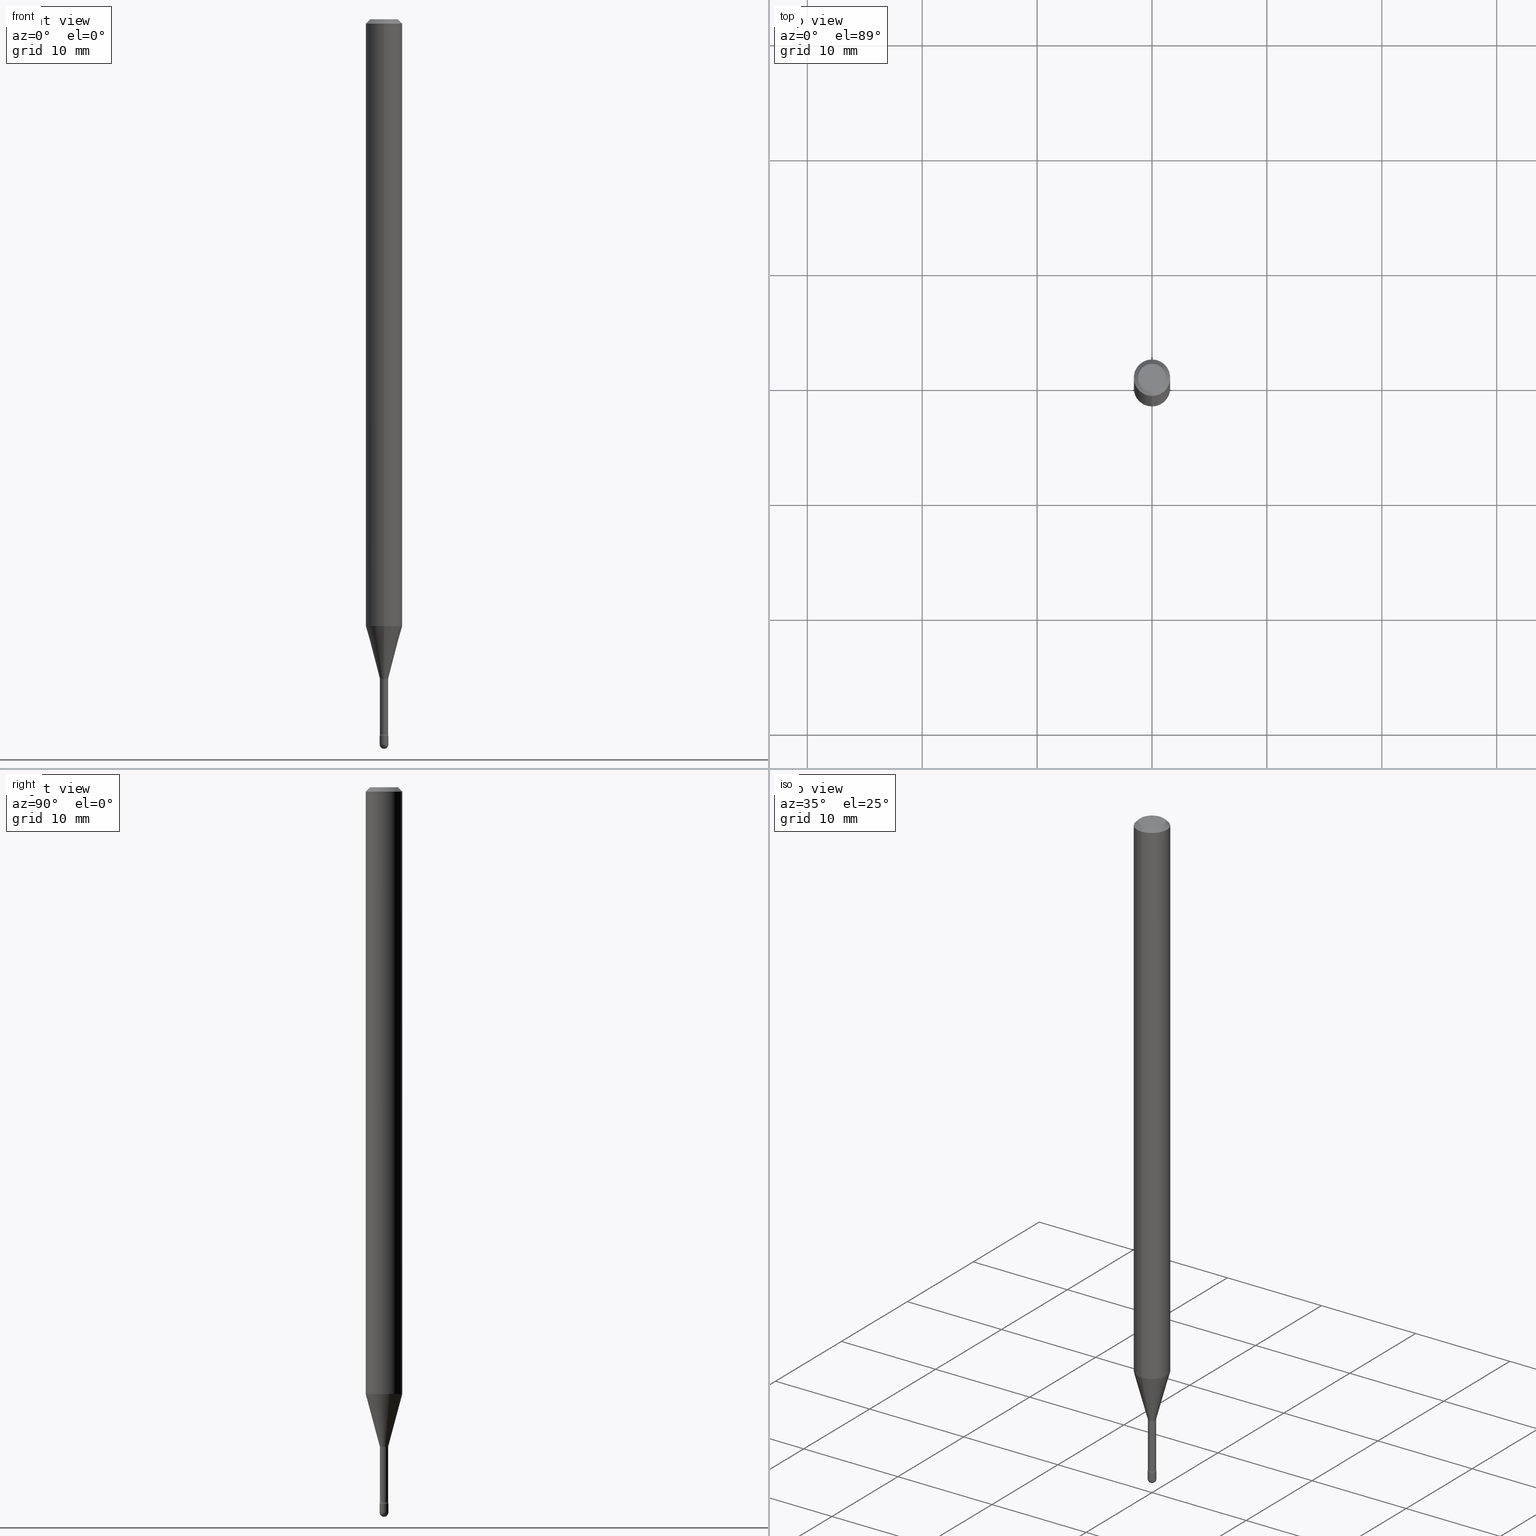
[diagram: canonical four-view strip — front | top / right | iso, engineering-drawing reading convention]
A machine part, canonical four-view strip (front | top / right | iso — engineering-drawing reading convention). The complete STEP part file that produces these views, byte-faithful:
ISO-10303-21;
HEADER;
FILE_DESCRIPTION (( 'STEP AP203' ),
    '1' );
FILE_NAME ('03863.STEP',
    '2024-04-09T20:49:26',
    ( '' ),
    ( '' ),
    'SwSTEP 2.0',
    'SolidWorks 2023',
    '' );
FILE_SCHEMA (( 'CONFIG_CONTROL_DESIGN' ));
ENDSEC;

DATA;
#1 = ORIENTED_EDGE ( 'NONE', *, *, #45, .T. ) ;
#2 = DIRECTION ( 'NONE',  ( 1.000000000000000000, -6.982962677686265922E-15, 4.883557194083112340E-29 ) ) ;
#3 = APPROVAL_DATE_TIME ( #109, #97 ) ;
#4 = EDGE_CURVE ( 'NONE', #251, #80, #111, .T. ) ;
#5 = DIRECTION ( 'NONE',  ( -2.445419966882117621E-29, 3.491551279504829123E-15, 1.000000000000000000 ) ) ;
#6 = ORIENTED_EDGE ( 'NONE', *, *, #414, .T. ) ;
#7 = CLOSED_SHELL ( 'NONE', ( #536, #551, #235, #434, #466 ) ) ;
#8 = CIRCLE ( 'NONE', #252, 0.04749999999999999362 ) ;
#9 = CARTESIAN_POINT ( 'NONE',  ( 5.991110947347058823E-29, -8.553718623887255619E-15, -2.449882383367230965 ) ) ;
#10 = DIRECTION ( 'NONE',  ( -2.445419966882117621E-29, 3.491551279504829123E-15, 1.000000000000000000 ) ) ;
#11 = ADVANCED_FACE ( 'NONE', ( #401 ), #406, .T. ) ;
#12 = APPROVAL_STATUS ( 'not_yet_approved' ) ;
#13 = MANIFOLD_SOLID_BREP ( 'Body-Move/Copy2[2]', #178 ) ;
#14 = EDGE_LOOP ( 'NONE', ( #561, #179, #269, #238 ) ) ;
#15 = DIRECTION ( 'NONE',  ( -2.445419966882117621E-29, 3.491551279504828729E-15, 1.000000000000000000 ) ) ;
#16 = CALENDAR_DATE ( 2024, 9, 4 ) ;
#17 = FACE_OUTER_BOUND ( 'NONE', #489, .T. ) ;
#18 = ORIENTED_EDGE ( 'NONE', *, *, #301, .T. ) ;
#19 = MANIFOLD_SOLID_BREP ( 'Body-Move/Copy2[1]', #7 ) ;
#20 = FACE_OUTER_BOUND ( 'NONE', #224, .T. ) ;
#21 = DIRECTION ( 'NONE',  ( -6.982962677686269077E-15, -1.000000000000000000, 0.000000000000000000 ) ) ;
#22 = ORIENTED_EDGE ( 'NONE', *, *, #301, .F. ) ;
#23 = DIRECTION ( 'NONE',  ( -2.445419966882117621E-29, 3.491551279504829123E-15, 1.000000000000000000 ) ) ;
#24 = CALENDAR_DATE ( 2024, 9, 4 ) ;
#25 = CIRCLE ( 'NONE', #243, 0.06250000000000000000 ) ;
#26 = CARTESIAN_POINT ( 'NONE',  ( 6.003625919184510659E-29, -8.571586686859923311E-15, -2.455000000000000071 ) ) ;
#27 = TOROIDAL_SURFACE ( 'NONE', #216, 0.02910000000000002168, 0.01499999999999998036 ) ;
#28 = CARTESIAN_POINT ( 'NONE',  ( 6.076989983370064174E-29, -8.676331127025216680E-15, -2.484999999999999876 ) ) ;
#29 = ORIENTED_EDGE ( 'NONE', *, *, #35, .F. ) ;
#30 = EDGE_CURVE ( 'NONE', #336, #280, #420, .T. ) ;
#31 = DIRECTION ( 'NONE',  ( -2.445419966882117621E-29, 3.491551279504829123E-15, 1.000000000000000000 ) ) ;
#32 = DIRECTION ( 'NONE',  ( -2.445468806185136597E-29, 3.491481338843145583E-15, 1.000000000000000000 ) ) ;
#33 = DIRECTION ( 'NONE',  ( -2.445419966882117621E-29, 3.491551279504828729E-15, 1.000000000000000000 ) ) ;
#34 = LINE ( 'NONE', #153, #432 ) ;
#35 = EDGE_CURVE ( 'NONE', #167, #130, #541, .T. ) ;
#36 = AXIS2_PLACEMENT_3D ( 'NONE', #527, #264, #189 ) ;
#37 = PRODUCT_DEFINITION_FORMATION_WITH_SPECIFIED_SOURCE ( 'ANY', '', #77, .NOT_KNOWN. ) ;
#38 = CARTESIAN_POINT ( 'NONE',  ( 3.668129950323196891E-31, -5.237326919257272109E-17, -0.01500000000000008271 ) ) ;
#39 = EDGE_LOOP ( 'NONE', ( #18, #441, #322, #197 ) ) ;
#40 = CIRCLE ( 'NONE', #327, 0.01409999999999999795 ) ;
#41 = CARTESIAN_POINT ( 'NONE',  ( -0.01500000000000000291, -8.517377496578554084E-15, -2.455000000000000071 ) ) ;
#42 = ORIENTED_EDGE ( 'NONE', *, *, #558, .T. ) ;
#43 = PERSON_AND_ORGANIZATION_ROLE ( 'creator' ) ;
#44 = APPROVAL_DATE_TIME ( #177, #247 ) ;
#45 = EDGE_CURVE ( 'NONE', #450, #152, #528, .T. ) ;
#46 = TOROIDAL_SURFACE ( 'NONE', #383, 0.02910000000000000087, 0.01500000000000002720 ) ;
#47 = AXIS2_PLACEMENT_3D ( 'NONE', #350, #147, #132 ) ;
#48 = FACE_OUTER_BOUND ( 'NONE', #121, .T. ) ;
#49 = PERSON_AND_ORGANIZATION ( #395, #71 ) ;
#50 = PERSON_AND_ORGANIZATION ( #395, #71 ) ;
#51 = CARTESIAN_POINT ( 'NONE',  ( 4.440892098500625669E-16, 0.06250000000000000000, 2.598514439221942430E-16 ) ) ;
#52 = AXIS2_PLACEMENT_3D ( 'NONE', #257, #427, #436 ) ;
#53 = CIRCLE ( 'NONE', #523, 0.06250000000000000000 ) ;
#54 = CARTESIAN_POINT ( 'NONE',  ( -9.845977375531671820E-17, -0.01410000000000859524, -2.449882383367230965 ) ) ;
#55 = CARTESIAN_POINT ( 'NONE',  ( -1.169113584055446105E-44, 1.669184350826100908E-30, 4.780733988912460139E-16 ) ) ;
#56 = EDGE_LOOP ( 'NONE', ( #307, #382, #142, #289 ) ) ;
#57 = FACE_OUTER_BOUND ( 'NONE', #465, .T. ) ;
#58 = CARTESIAN_POINT ( 'NONE',  ( -0.01499999999999999771, 1.065814103640150116E-16, -7.378402635382356781E-31 ) ) ;
#59 = ORIENTED_EDGE ( 'NONE', *, *, #175, .T. ) ;
#60 = PERSON_AND_ORGANIZATION ( #395, #71 ) ;
#61 = CARTESIAN_POINT ( 'NONE',  ( 5.084929837540810216E-29, -7.260222587899458845E-15, -2.079368740913666969 ) ) ;
#62 = PERSON_AND_ORGANIZATION_ROLE ( 'classification_officer' ) ;
#63 = LINE ( 'NONE', #542, #222 ) ;
#64 = ORIENTED_EDGE ( 'NONE', *, *, #375, .T. ) ;
#65 = ADVANCED_FACE ( 'NONE', ( #203 ), #554, .T. ) ;
#66 = DIRECTION ( 'NONE',  ( -6.982962677686265922E-15, -1.000000000000000000, 3.483106191921935554E-15 ) ) ;
#67 = PERSON_AND_ORGANIZATION_ROLE ( 'design_supplier' ) ;
#68 = AXIS2_PLACEMENT_3D ( 'NONE', #440, #31, #355 ) ;
#69 = DIRECTION ( 'NONE',  ( -1.000000000000000000, 6.982962677686265922E-15, -4.883557194083112340E-29 ) ) ;
#70 = AXIS2_PLACEMENT_3D ( 'NONE', #223, #306, #400 ) ;
#71 = ORGANIZATION ( 'UNSPECIFIED', 'UNSPECIFIED', '' ) ;
#72 = ADVANCED_BREP_SHAPE_REPRESENTATION ( '03863', ( #19, #13, #390 ), #88 ) ;
#73 = CARTESIAN_POINT ( 'NONE',  ( 6.076989983370063053E-29, -8.676331127025215102E-15, -2.484999999999999432 ) ) ;
#74 = CARTESIAN_POINT ( 'NONE',  ( -4.364351673553916201E-16, -0.06250000000000000000, 6.962953538602978834E-16 ) ) ;
#75 = DIRECTION ( 'NONE',  ( 1.000000000000000000, -6.982962677686268288E-15, 0.000000000000000000 ) ) ;
#76 = VERTEX_POINT ( 'NONE', #508 ) ;
#77 = PRODUCT ( '03863', '03863', '', ( #241 ) ) ;
#78 = ADVANCED_FACE ( 'NONE', ( #248 ), #559, .F. ) ;
#79 = CARTESIAN_POINT ( 'NONE',  ( 6.114313390179726173E-29, -8.727784862008503672E-15, -2.500000000000000000 ) ) ;
#80 = VERTEX_POINT ( 'NONE', #512 ) ;
#81 = AXIS2_PLACEMENT_3D ( 'NONE', #333, #128, #299 ) ;
#82 = ORIENTED_EDGE ( 'NONE', *, *, #340, .F. ) ;
#83 = PERSON_AND_ORGANIZATION ( #395, #71 ) ;
#84 = CC_DESIGN_PERSON_AND_ORGANIZATION_ASSIGNMENT ( #83, #43, ( #181 ) ) ;
#85 = AXIS2_PLACEMENT_3D ( 'NONE', #297, #207, #472 ) ;
#86 = AXIS2_PLACEMENT_3D ( 'NONE', #261, #23, #453 ) ;
#87 = CARTESIAN_POINT ( 'NONE',  ( -9.845977375532100763E-17, -0.01410000000000789615, -2.261974787463811420 ) ) ;
#88 =( GEOMETRIC_REPRESENTATION_CONTEXT ( 3 ) GLOBAL_UNCERTAINTY_ASSIGNED_CONTEXT ( ( #418 ) ) GLOBAL_UNIT_ASSIGNED_CONTEXT ( ( #356, #480, #419 ) ) REPRESENTATION_CONTEXT ( 'NONE', 'WORKASPACE' ) );
#89 = EDGE_CURVE ( 'NONE', #251, #319, #25, .T. ) ;
#90 =( LENGTH_UNIT ( ) NAMED_UNIT ( * ) SI_UNIT ( $, .METRE. ) );
#91 = CARTESIAN_POINT ( 'NONE',  ( 6.076989983370064174E-29, -8.676331127025216680E-15, -2.484999999999999876 ) ) ;
#92 = AXIS2_PLACEMENT_3D ( 'NONE', #26, #369, #231 ) ;
#93 = AXIS2_PLACEMENT_3D ( 'NONE', #182, #2, #136 ) ;
#94 = CARTESIAN_POINT ( 'NONE',  ( 3.668129950323196891E-31, -5.237326919257272109E-17, -0.01500000000000008271 ) ) ;
#95 = LINE ( 'NONE', #140, #385 ) ;
#96 = EDGE_LOOP ( 'NONE', ( #213, #108, #516, #315 ) ) ;
#97 = APPROVAL ( #230, 'UNSPECIFIED' ) ;
#98 = FACE_OUTER_BOUND ( 'NONE', #96, .T. ) ;
#99 = DIRECTION ( 'NONE',  ( -2.445419966882117621E-29, 3.491551279504829123E-15, 1.000000000000000000 ) ) ;
#100 = DIRECTION ( 'NONE',  ( -2.445419966882117621E-29, 3.491551279504829123E-15, 1.000000000000000000 ) ) ;
#101 = AXIS2_PLACEMENT_3D ( 'NONE', #157, #285, #550 ) ;
#102 = CARTESIAN_POINT ( 'NONE',  ( 1.038181992333288843E-16, 0.01461111260565609374, -2.258092501787273498 ) ) ;
#103 = DIRECTION ( 'NONE',  ( -6.982962677686265922E-15, -1.000000000000000000, 3.483106191921935554E-15 ) ) ;
#104 = VERTEX_POINT ( 'NONE', #387 ) ;
#105 = DIRECTION ( 'NONE',  ( -6.982962677686266711E-15, -1.000000000000000000, 0.000000000000000000 ) ) ;
#106 = DIRECTION ( 'NONE',  ( -2.445468806185136597E-29, 3.491481338843145583E-15, 1.000000000000000000 ) ) ;
#107 = DATE_AND_TIME ( #184, #411 ) ;
#108 = ORIENTED_EDGE ( 'NONE', *, *, #253, .F. ) ;
#109 = DATE_AND_TIME ( #24, #271 ) ;
#110 = CARTESIAN_POINT ( 'NONE',  ( 6.076989983370063053E-29, -8.676331127025215102E-15, -2.484999999999999432 ) ) ;
#111 = LINE ( 'NONE', #51, #161 ) ;
#112 = VECTOR ( 'NONE', #490, 39.37007874015748143 ) ;
#113 = DIRECTION ( 'NONE',  ( 1.000000000000000000, -7.105427357601001070E-15, 4.926316365068156568E-29 ) ) ;
#114 = PLANE ( 'NONE',  #129 ) ;
#115 = EDGE_LOOP ( 'NONE', ( #533, #380, #514, #535 ) ) ;
#116 = EDGE_CURVE ( 'NONE', #545, #336, #337, .T. ) ;
#117 = DIRECTION ( 'NONE',  ( 1.000000000000000000, -6.982962677686204391E-15, 0.000000000000000000 ) ) ;
#118 = DIRECTION ( 'NONE',  ( -2.445468806185136597E-29, 3.491481338843145583E-15, 1.000000000000000000 ) ) ;
#119 = CARTESIAN_POINT ( 'NONE',  ( 0.000000000000000000, 0.000000000000000000, 0.000000000000000000 ) ) ;
#120 = ORIENTED_EDGE ( 'NONE', *, *, #45, .F. ) ;
#121 = EDGE_LOOP ( 'NONE', ( #228, #548, #521, #504 ) ) ;
#122 = DIRECTION ( 'NONE',  ( 1.000000000000000000, -6.982962677686204391E-15, 0.000000000000000000 ) ) ;
#123 = APPROVAL_PERSON_ORGANIZATION ( #50, #97, #403 ) ;
#124 = EDGE_LOOP ( 'NONE', ( #242, #256, #120, #428, #278 ) ) ;
#125 = EDGE_CURVE ( 'NONE', #319, #499, #371, .T. ) ;
#126 = DIRECTION ( 'NONE',  ( -6.982962677686265133E-15, -1.000000000000000000, 3.491551279504826757E-15 ) ) ;
#127 = CARTESIAN_POINT ( 'NONE',  ( 2.739537045417211848E-16, 0.01461111260565609374, -2.258092501787273498 ) ) ;
#128 = DIRECTION ( 'NONE',  ( -2.445419966882117621E-29, 3.491551279504829123E-15, 1.000000000000000000 ) ) ;
#129 = AXIS2_PLACEMENT_3D ( 'NONE', #286, #549, #323 ) ;
#130 = VERTEX_POINT ( 'NONE', #374 ) ;
#131 = ADVANCED_FACE ( 'NONE', ( #158 ), #46, .F. ) ;
#132 = DIRECTION ( 'NONE',  ( 1.000000000000000000, -6.982962677686204391E-15, 0.000000000000000000 ) ) ;
#133 = DIRECTION ( 'NONE',  ( -1.000000000000000000, 6.982962677686265922E-15, -4.883557194083112340E-29 ) ) ;
#134 = FACE_OUTER_BOUND ( 'NONE', #485, .T. ) ;
#135 = ORIENTED_EDGE ( 'NONE', *, *, #517, .T. ) ;
#136 = DIRECTION ( 'NONE',  ( 6.982962677686265922E-15, 1.000000000000000000, 0.000000000000000000 ) ) ;
#137 = DATE_AND_TIME ( #16, #460 ) ;
#138 = CARTESIAN_POINT ( 'NONE',  ( 3.668129950323196891E-31, -5.237326919257272109E-17, -0.01500000000000008271 ) ) ;
#139 = EDGE_LOOP ( 'NONE', ( #249, #205, #6, #556 ) ) ;
#140 = CARTESIAN_POINT ( 'NONE',  ( -9.845977375537648674E-17, -0.01410000000000002050, 5.273042719322642309E-16 ) ) ;
#141 = CARTESIAN_POINT ( 'NONE',  ( -2.032042139206150428E-16, -0.02910000000000789733, -2.261974787463811420 ) ) ;
#142 = ORIENTED_EDGE ( 'NONE', *, *, #250, .F. ) ;
#143 = CALENDAR_DATE ( 2024, 9, 4 ) ;
#144 = EDGE_CURVE ( 'NONE', #352, #334, #496, .T. ) ;
#145 = CIRCLE ( 'NONE', #70, 0.01410000000000004132 ) ;
#146 = DIRECTION ( 'NONE',  ( -6.982962677686265922E-15, -1.000000000000000000, 4.370956789862821150E-15 ) ) ;
#147 = DIRECTION ( 'NONE',  ( -2.445468806185136597E-29, 3.491481338843145583E-15, 1.000000000000000000 ) ) ;
#148 = APPROVAL_PERSON_ORGANIZATION ( #60, #247, #367 ) ;
#149 = SECURITY_CLASSIFICATION_LEVEL ( 'unclassified' ) ;
#150 = FACE_OUTER_BOUND ( 'NONE', #422, .T. ) ;
#151 = APPLICATION_PROTOCOL_DEFINITION ( 'international standard', 'config_control_design', 1994, #174 ) ;
#152 = VERTEX_POINT ( 'NONE', #41 ) ;
#153 = CARTESIAN_POINT ( 'NONE',  ( 0.01499999999999999771, -1.047444401652939859E-16, 7.314265163693902638E-31 ) ) ;
#154 = CARTESIAN_POINT ( 'NONE',  ( 0.01499999999999999771, -8.728703347107861787E-15, -2.484999999999999432 ) ) ;
#155 = PRODUCT_DEFINITION_SHAPE ( 'NONE', 'NONE',  #181 ) ;
#156 = ORIENTED_EDGE ( 'NONE', *, *, #259, .F. ) ;
#157 = CARTESIAN_POINT ( 'NONE',  ( 5.521984490937392586E-29, -7.884245763855615505E-15, -2.258092501787273498 ) ) ;
#158 = FACE_OUTER_BOUND ( 'NONE', #14, .T. ) ;
#159 = DIRECTION ( 'NONE',  ( 2.445419966882117621E-29, -3.491551279504829123E-15, -1.000000000000000000 ) ) ;
#160 = DIRECTION ( 'NONE',  ( -6.982962677686265922E-15, -1.000000000000000000, 0.000000000000000000 ) ) ;
#161 = VECTOR ( 'NONE', #232, 39.37007874015748143 ) ;
#162 = AXIS2_PLACEMENT_3D ( 'NONE', #547, #188, #492 ) ;
#163 = LOCAL_TIME ( 16, 49, 26.00000000000000000, #563 ) ;
#164 = DIMENSIONAL_EXPONENTS ( 1.000000000000000000, 0.000000000000000000, 0.000000000000000000, 0.000000000000000000, 0.000000000000000000, 0.000000000000000000, 0.000000000000000000 ) ;
#165 = DIRECTION ( 'NONE',  ( -2.445419966882117621E-29, 3.491551279504828729E-15, 1.000000000000000000 ) ) ;
#166 = FACE_OUTER_BOUND ( 'NONE', #124, .T. ) ;
#167 = VERTEX_POINT ( 'NONE', #127 ) ;
#168 = CARTESIAN_POINT ( 'NONE',  ( 6.003625919184510659E-29, -8.571586686859923311E-15, -2.455000000000000071 ) ) ;
#169 = CARTESIAN_POINT ( 'NONE',  ( -4.364351673553912750E-16, -0.06250000000000005551, -0.01499999999999986587 ) ) ;
#170 = ORIENTED_EDGE ( 'NONE', *, *, #414, .F. ) ;
#171 = VERTEX_POINT ( 'NONE', #87 ) ;
#172 = ADVANCED_FACE ( 'NONE', ( #532 ), #291, .T. ) ;
#173 = TOROIDAL_SURFACE ( 'NONE', #316, 0.02910000000000002168, 0.01499999999999998036 ) ;
#174 = APPLICATION_CONTEXT ( 'configuration controlled 3d designs of mechanical parts and assemblies' ) ;
#175 = EDGE_CURVE ( 'NONE', #167, #104, #314, .T. ) ;
#176 = EDGE_CURVE ( 'NONE', #104, #171, #303, .T. ) ;
#177 = DATE_AND_TIME ( #143, #163 ) ;
#178 = CLOSED_SHELL ( 'NONE', ( #131, #11, #332, #524, #212, #474, #65, #359, #321, #526, #78, #384, #172, #218 ) ) ;
#179 = ORIENTED_EDGE ( 'NONE', *, *, #35, .T. ) ;
#180 = ORIENTED_EDGE ( 'NONE', *, *, #426, .F. ) ;
#181 = PRODUCT_DEFINITION ( 'UNKNOWN', '', #37, #344 ) ;
#182 = CARTESIAN_POINT ( 'NONE',  ( 6.076989983370064174E-29, -8.676331127025216680E-15, -2.484999999999999876 ) ) ;
#183 = EDGE_CURVE ( 'NONE', #481, #503, #518, .T. ) ;
#184 = CALENDAR_DATE ( 2024, 9, 4 ) ;
#185 = ORIENTED_EDGE ( 'NONE', *, *, #89, .F. ) ;
#186 = AXIS2_PLACEMENT_3D ( 'NONE', #461, #293, #160 ) ;
#187 = CARTESIAN_POINT ( 'NONE',  ( 1.047444401653551842E-16, 0.01499999999999138481, -2.484999999999999432 ) ) ;
#188 = DIRECTION ( 'NONE',  ( -2.438088387897960049E-29, 3.491481338843145188E-15, 1.000000000000000000 ) ) ;
#189 = DIRECTION ( 'NONE',  ( -6.982962677686265922E-15, -1.000000000000000000, 0.000000000000000000 ) ) ;
#190 = EDGE_LOOP ( 'NONE', ( #276, #292, #201, #208 ) ) ;
#191 = DIRECTION ( 'NONE',  ( -1.000000000000000000, 6.982962677686265922E-15, -4.883557194083113462E-29 ) ) ;
#192 = ORIENTED_EDGE ( 'NONE', *, *, #407, .T. ) ;
#193 = EDGE_CURVE ( 'NONE', #152, #450, #457, .T. ) ;
#194 = CYLINDRICAL_SURFACE ( 'NONE', #86, 0.06250000000000000000 ) ;
#195 = DIRECTION ( 'NONE',  ( -2.445419966882117621E-29, 3.491551279504829123E-15, 1.000000000000000000 ) ) ;
#196 = CARTESIAN_POINT ( 'NONE',  ( 0.000000000000000000, 0.000000000000000000, 0.000000000000000000 ) ) ;
#197 = ORIENTED_EDGE ( 'NONE', *, *, #522, .F. ) ;
#198 = VECTOR ( 'NONE', #421, 39.37007874015749564 ) ;
#199 = DIRECTION ( 'NONE',  ( -2.445419966882117621E-29, 3.491551279504829123E-15, 1.000000000000000000 ) ) ;
#200 = DIRECTION ( 'NONE',  ( 4.937700262164548042E-15, 0.7071067811865451302, -0.7071067811865499042 ) ) ;
#201 = ORIENTED_EDGE ( 'NONE', *, *, #476, .F. ) ;
#202 = DIRECTION ( 'NONE',  ( -2.445419966882117621E-29, 3.491551279504829123E-15, 1.000000000000000000 ) ) ;
#203 = FACE_OUTER_BOUND ( 'NONE', #409, .T. ) ;
#204 = CC_DESIGN_DATE_AND_TIME_ASSIGNMENT ( #137, #439, ( #478 ) ) ;
#205 = ORIENTED_EDGE ( 'NONE', *, *, #546, .T. ) ;
#206 = CONICAL_SURFACE ( 'NONE', #244, 0.06250000000000000000, 0.7853981633974483900 ) ;
#207 = DIRECTION ( 'NONE',  ( 1.000000000000000000, -7.105427357601001070E-15, 4.926316365068156568E-29 ) ) ;
#208 = ORIENTED_EDGE ( 'NONE', *, *, #30, .F. ) ;
#209 = DIRECTION ( 'NONE',  ( -2.445468806185136597E-29, 3.491481338843145583E-15, 1.000000000000000000 ) ) ;
#210 = APPROVAL_DATE_TIME ( #107, #417 ) ;
#211 = EDGE_LOOP ( 'NONE', ( #310, #425 ) ) ;
#212 = ADVANCED_FACE ( 'NONE', ( #318 ), #320, .T. ) ;
#213 = ORIENTED_EDGE ( 'NONE', *, *, #386, .F. ) ;
#214 = TOROIDAL_SURFACE ( 'NONE', #443, 0.02910000000000000087, 0.01500000000000002720 ) ;
#215 = AXIS2_PLACEMENT_3D ( 'NONE', #415, #165, #329 ) ;
#216 = AXIS2_PLACEMENT_3D ( 'NONE', #495, #226, #234 ) ;
#217 = ORIENTED_EDGE ( 'NONE', *, *, #225, .T. ) ;
#218 = ADVANCED_FACE ( 'NONE', ( #150 ), #214, .F. ) ;
#219 = APPLICATION_CONTEXT ( 'configuration controlled 3d designs of mechanical parts and assemblies' ) ;
#220 = PRODUCT_RELATED_PRODUCT_CATEGORY ( 'detail', '', ( #77 ) ) ;
#221 = PERSON_AND_ORGANIZATION ( #395, #71 ) ;
#222 = VECTOR ( 'NONE', #200, 39.37007874015748143 ) ;
#223 = CARTESIAN_POINT ( 'NONE',  ( 5.990991296798976429E-29, -8.553889970282195119E-15, -2.449882383367230965 ) ) ;
#224 = EDGE_LOOP ( 'NONE', ( #396, #331, #64, #553 ) ) ;
#225 = EDGE_CURVE ( 'NONE', #171, #130, #40, .T. ) ;
#226 = DIRECTION ( 'NONE',  ( -2.445419966882117621E-29, 3.491551279504829123E-15, 1.000000000000000000 ) ) ;
#227 = APPROVAL_ROLE ( '' ) ;
#228 = ORIENTED_EDGE ( 'NONE', *, *, #290, .F. ) ;
#229 = FACE_OUTER_BOUND ( 'NONE', #115, .T. ) ;
#230 = APPROVAL_STATUS ( 'not_yet_approved' ) ;
#231 = DIRECTION ( 'NONE',  ( 1.000000000000000000, -6.982962677686268288E-15, 0.000000000000000000 ) ) ;
#232 = DIRECTION ( 'NONE',  ( -2.445419966882117621E-29, 3.491551279504828729E-15, 1.000000000000000000 ) ) ;
#233 = AXIS2_PLACEMENT_3D ( 'NONE', #237, #435, #347 ) ;
#234 = DIRECTION ( 'NONE',  ( -6.982962677686265922E-15, -1.000000000000000000, 3.491551279504829123E-15 ) ) ;
#235 = ADVANCED_FACE ( 'NONE', ( #17 ), #313, .T. ) ;
#236 = ORIENTED_EDGE ( 'NONE', *, *, #193, .T. ) ;
#237 = CARTESIAN_POINT ( 'NONE',  ( 6.003506018695598917E-29, -8.571758391184355305E-15, -2.455000000000000071 ) ) ;
#238 = ORIENTED_EDGE ( 'NONE', *, *, #176, .F. ) ;
#239 = CARTESIAN_POINT ( 'NONE',  ( -4.364351673553407386E-16, -0.06250000000000725808, -2.079368740913666969 ) ) ;
#240 = COORDINATED_UNIVERSAL_TIME_OFFSET ( 5, 0, .BEHIND. ) ;
#241 = MECHANICAL_CONTEXT ( 'NONE', #174, 'mechanical' ) ;
#242 = ORIENTED_EDGE ( 'NONE', *, *, #426, .T. ) ;
#243 = AXIS2_PLACEMENT_3D ( 'NONE', #287, #464, #146 ) ;
#244 = AXIS2_PLACEMENT_3D ( 'NONE', #509, #159, #325 ) ;
#245 = DIRECTION ( 'NONE',  ( -6.982962677686265922E-15, -1.000000000000000000, 0.000000000000000000 ) ) ;
#246 = DIRECTION ( 'NONE',  ( -2.445468806185136877E-29, 3.491481338843145188E-15, 1.000000000000000000 ) ) ;
#247 = APPROVAL ( #358, 'UNSPECIFIED' ) ;
#248 = FACE_OUTER_BOUND ( 'NONE', #378, .T. ) ;
#249 = ORIENTED_EDGE ( 'NONE', *, *, #407, .F. ) ;
#250 = EDGE_CURVE ( 'NONE', #499, #80, #348, .T. ) ;
#251 = VERTEX_POINT ( 'NONE', #275 ) ;
#252 = AXIS2_PLACEMENT_3D ( 'NONE', #309, #99, #361 ) ;
#253 = EDGE_CURVE ( 'NONE', #334, #352, #8, .T. ) ;
#254 = DIRECTION ( 'NONE',  ( -6.982962677686265133E-15, -1.000000000000000000, 3.491551279504826757E-15 ) ) ;
#255 = ORIENTED_EDGE ( 'NONE', *, *, #375, .F. ) ;
#256 = ORIENTED_EDGE ( 'NONE', *, *, #267, .T. ) ;
#257 = CARTESIAN_POINT ( 'NONE',  ( 2.023197715275958994E-45, -2.889373429076606734E-31, -8.274370989011542257E-17 ) ) ;
#258 = CIRCLE ( 'NONE', #564, 0.01499999999999999771 ) ;
#259 = EDGE_CURVE ( 'NONE', #334, #80, #63, .T. ) ;
#260 = VECTOR ( 'NONE', #501, 39.37007874015748143 ) ;
#261 = CARTESIAN_POINT ( 'NONE',  ( -1.169113584055446105E-44, 1.669184350826100908E-30, 4.780733988912460139E-16 ) ) ;
#262 = LINE ( 'NONE', #273, #112 ) ;
#263 = DIRECTION ( 'NONE',  ( -2.445419966882117621E-29, 3.491551279504829123E-15, 1.000000000000000000 ) ) ;
#264 = DIRECTION ( 'NONE',  ( -2.445419966882117621E-29, 3.491551279504829123E-15, 1.000000000000000000 ) ) ;
#265 = ORIENTED_EDGE ( 'NONE', *, *, #386, .T. ) ;
#266 = DATE_AND_TIME ( #272, #339 ) ;
#267 = EDGE_CURVE ( 'NONE', #76, #152, #448, .T. ) ;
#268 = AXIS2_PLACEMENT_3D ( 'NONE', #28, #424, #410 ) ;
#269 = ORIENTED_EDGE ( 'NONE', *, *, #566, .T. ) ;
#270 = AXIS2_PLACEMENT_3D ( 'NONE', #94, #483, #442 ) ;
#271 = LOCAL_TIME ( 16, 49, 26.00000000000000000, #354 ) ;
#272 = CALENDAR_DATE ( 2024, 9, 4 ) ;
#273 = CARTESIAN_POINT ( 'NONE',  ( 1.001865257421742472E-16, 0.01410000000000002050, 4.288425258502279449E-16 ) ) ;
#274 = PERSON_AND_ORGANIZATION ( #395, #71 ) ;
#275 = CARTESIAN_POINT ( 'NONE',  ( 4.440892098501132019E-16, 0.06249999999999272804, -2.079368740913667413 ) ) ;
#276 = ORIENTED_EDGE ( 'NONE', *, *, #116, .F. ) ;
#277 = DIRECTION ( 'NONE',  ( -2.445468806185136597E-29, 3.491481338843145583E-15, 1.000000000000000000 ) ) ;
#278 = ORIENTED_EDGE ( 'NONE', *, *, #476, .T. ) ;
#279 = DIRECTION ( 'NONE',  ( -2.445419966882117621E-29, 3.491551279504829123E-15, 1.000000000000000000 ) ) ;
#280 = VERTEX_POINT ( 'NONE', #154 ) ;
#281 = EDGE_CURVE ( 'NONE', #76, #336, #258, .T. ) ;
#282 = AXIS2_PLACEMENT_3D ( 'NONE', #55, #202, #351 ) ;
#283 = CIRCLE ( 'NONE', #81, 0.01410000000000004132 ) ;
#284 = CONICAL_SURFACE ( 'NONE', #186, 0.01461111260566397632, 0.2617993877991501295 ) ;
#285 = DIRECTION ( 'NONE',  ( -2.445419966882117621E-29, 3.491551279504829123E-15, 1.000000000000000000 ) ) ;
#286 = CARTESIAN_POINT ( 'NONE',  ( 3.316907271900976096E-16, 0.04749999999999999362, 3.181615872408596852E-17 ) ) ;
#287 = CARTESIAN_POINT ( 'NONE',  ( 5.084929837540810216E-29, -7.260222587899458845E-15, -2.079368740913666969 ) ) ;
#288 = DIRECTION ( 'NONE',  ( 1.000000000000000000, -6.982962677686266711E-15, 4.876176775795935793E-29 ) ) ;
#289 = ORIENTED_EDGE ( 'NONE', *, *, #125, .F. ) ;
#290 = EDGE_CURVE ( 'NONE', #357, #503, #507, .T. ) ;
#291 = CYLINDRICAL_SURFACE ( 'NONE', #475, 0.01410000000000002050 ) ;
#292 = ORIENTED_EDGE ( 'NONE', *, *, #340, .T. ) ;
#293 = DIRECTION ( 'NONE',  ( -2.445419966882117621E-29, 3.491551279504829123E-15, 1.000000000000000000 ) ) ;
#294 = AXIS2_PLACEMENT_3D ( 'NONE', #373, #515, #552 ) ;
#295 = CONICAL_SURFACE ( 'NONE', #270, 0.06250000000000000000, 0.7853981633974483900 ) ;
#296 = APPROVAL_PERSON_ORGANIZATION ( #49, #417, #227 ) ;
#297 = CARTESIAN_POINT ( 'NONE',  ( 2.067679361062444545E-16, 0.02909999999999210440, -2.261974787463811420 ) ) ;
#298 = CC_DESIGN_PERSON_AND_ORGANIZATION_ASSIGNMENT ( #274, #62, ( #478 ) ) ;
#299 = DIRECTION ( 'NONE',  ( -6.982962677686265922E-15, -1.000000000000000000, 0.000000000000000000 ) ) ;
#300 = AXIS2_PLACEMENT_3D ( 'NONE', #511, #209, #117 ) ;
#301 = EDGE_CURVE ( 'NONE', #104, #167, #477, .T. ) ;
#302 = SPHERICAL_SURFACE ( 'NONE', #423, 0.01500000000000012434 ) ;
#303 = CIRCLE ( 'NONE', #376, 0.01500000000000002373 ) ;
#304 = FACE_OUTER_BOUND ( 'NONE', #190, .T. ) ;
#305 = COORDINATED_UNIVERSAL_TIME_OFFSET ( 5, 0, .BEHIND. ) ;
#306 = DIRECTION ( 'NONE',  ( -2.445419966882117621E-29, 3.491551279504829123E-15, 1.000000000000000000 ) ) ;
#307 = ORIENTED_EDGE ( 'NONE', *, *, #368, .T. ) ;
#308 = DIRECTION ( 'NONE',  ( -2.445419966882117621E-29, 3.491551279504829123E-15, 1.000000000000000000 ) ) ;
#309 = CARTESIAN_POINT ( 'NONE',  ( 2.023197715275958994E-45, -2.889373429076606734E-31, -8.274370989011542257E-17 ) ) ;
#310 = ORIENTED_EDGE ( 'NONE', *, *, #253, .T. ) ;
#311 = CC_DESIGN_PERSON_AND_ORGANIZATION_ASSIGNMENT ( #565, #67, ( #37 ) ) ;
#312 = DIRECTION ( 'NONE',  ( 6.982962677686265922E-15, 1.000000000000000000, 0.000000000000000000 ) ) ;
#313 = PLANE ( 'NONE',  #162 ) ;
#314 = CIRCLE ( 'NONE', #362, 0.01461111260566397632 ) ;
#315 = ORIENTED_EDGE ( 'NONE', *, *, #494, .T. ) ;
#316 = AXIS2_PLACEMENT_3D ( 'NONE', #9, #308, #525 ) ;
#317 = SPHERICAL_SURFACE ( 'NONE', #365, 0.01500000000000012434 ) ;
#318 = FACE_OUTER_BOUND ( 'NONE', #56, .T. ) ;
#319 = VERTEX_POINT ( 'NONE', #239 ) ;
#320 = CYLINDRICAL_SURFACE ( 'NONE', #282, 0.06250000000000000000 ) ;
#321 = ADVANCED_FACE ( 'NONE', ( #98 ), #295, .T. ) ;
#322 = ORIENTED_EDGE ( 'NONE', *, *, #368, .F. ) ;
#323 = DIRECTION ( 'NONE',  ( 6.982962677686265922E-15, 1.000000000000000000, -3.491551279504828729E-15 ) ) ;
#324 = CARTESIAN_POINT ( 'NONE',  ( 2.067679361062491876E-16, 0.02909999999999146950, -2.449882383367230965 ) ) ;
#325 = DIRECTION ( 'NONE',  ( 6.982962677686265922E-15, 1.000000000000000000, -3.483106191921935554E-15 ) ) ;
#326 = ORIENTED_EDGE ( 'NONE', *, *, #281, .F. ) ;
#327 = AXIS2_PLACEMENT_3D ( 'NONE', #398, #10, #245 ) ;
#328 = CC_DESIGN_APPROVAL ( #417, ( #181 ) ) ;
#329 = DIRECTION ( 'NONE',  ( -6.982962677686265922E-15, -1.000000000000000000, 3.491551279504828729E-15 ) ) ;
#330 = FACE_OUTER_BOUND ( 'NONE', #370, .T. ) ;
#331 = ORIENTED_EDGE ( 'NONE', *, *, #290, .T. ) ;
#332 = ADVANCED_FACE ( 'NONE', ( #20 ), #27, .F. ) ;
#333 = CARTESIAN_POINT ( 'NONE',  ( 5.990991296798976429E-29, -8.553889970282195119E-15, -2.449882383367230965 ) ) ;
#334 = VERTEX_POINT ( 'NONE', #360 ) ;
#335 = CC_DESIGN_DATE_AND_TIME_ASSIGNMENT ( #266, #452, ( #181 ) ) ;
#336 = VERTEX_POINT ( 'NONE', #438 ) ;
#337 = CIRCLE ( 'NONE', #268, 0.01500000000000012434 ) ;
#338 = AXIS2_PLACEMENT_3D ( 'NONE', #138, #497, #103 ) ;
#339 = LOCAL_TIME ( 16, 49, 26.00000000000000000, #431 ) ;
#340 = EDGE_CURVE ( 'NONE', #545, #446, #531, .T. ) ;
#341 = ORIENTED_EDGE ( 'NONE', *, *, #225, .F. ) ;
#342 = CIRCLE ( 'NONE', #47, 0.01499999999999999771 ) ;
#343 = CC_DESIGN_APPROVAL ( #97, ( #478 ) ) ;
#344 = DESIGN_CONTEXT ( 'detailed design', #219, 'design' ) ;
#345 = LENGTH_MEASURE_WITH_UNIT ( LENGTH_MEASURE( 0.02539999999999999897 ), #90 );
#346 = ORIENTED_EDGE ( 'NONE', *, *, #267, .F. ) ;
#347 = DIRECTION ( 'NONE',  ( -6.982962677686265922E-15, -1.000000000000000000, 0.000000000000000000 ) ) ;
#348 = CIRCLE ( 'NONE', #338, 0.06250000000000000000 ) ;
#349 = ORIENTED_EDGE ( 'NONE', *, *, #183, .F. ) ;
#350 = CARTESIAN_POINT ( 'NONE',  ( 6.076989983370063053E-29, -8.676331127025215102E-15, -2.484999999999999432 ) ) ;
#351 = DIRECTION ( 'NONE',  ( -6.982962677686265922E-15, -1.000000000000000000, 3.491551279504829123E-15 ) ) ;
#352 = VERTEX_POINT ( 'NONE', #393 ) ;
#353 = LINE ( 'NONE', #102, #484 ) ;
#354 = COORDINATED_UNIVERSAL_TIME_OFFSET ( 5, 0, .BEHIND. ) ;
#355 = DIRECTION ( 'NONE',  ( -6.982962677686265922E-15, -1.000000000000000000, 0.000000000000000000 ) ) ;
#356 =( CONVERSION_BASED_UNIT ( 'INCH', #345 ) LENGTH_UNIT ( ) NAMED_UNIT ( #164 ) );
#357 = VERTEX_POINT ( 'NONE', #408 ) ;
#358 = APPROVAL_STATUS ( 'not_yet_approved' ) ;
#359 = ADVANCED_FACE ( 'NONE', ( #229 ), #194, .T. ) ;
#360 = CARTESIAN_POINT ( 'NONE',  ( 3.840629472727447874E-16, 0.04749999999999999362, -2.485923956665947867E-16 ) ) ;
#361 = DIRECTION ( 'NONE',  ( -6.982962677686266711E-15, -1.000000000000000000, 3.491551279504829518E-15 ) ) ;
#362 = AXIS2_PLACEMENT_3D ( 'NONE', #519, #263, #454 ) ;
#363 = DIRECTION ( 'NONE',  ( 0.000000000000000000, 0.000000000000000000, 1.000000000000000000 ) ) ;
#364 = ORIENTED_EDGE ( 'NONE', *, *, #30, .T. ) ;
#365 = AXIS2_PLACEMENT_3D ( 'NONE', #534, #191, #312 ) ;
#366 = CARTESIAN_POINT ( 'NONE',  ( -1.020288540047676708E-16, -0.01461111260567186064, -2.258092501787273498 ) ) ;
#367 = APPROVAL_ROLE ( '' ) ;
#368 = EDGE_CURVE ( 'NONE', #319, #251, #470, .T. ) ;
#369 = DIRECTION ( 'NONE',  ( -2.445468806185136597E-29, 3.491481338843145583E-15, 1.000000000000000000 ) ) ;
#370 = EDGE_LOOP ( 'NONE', ( #455, #265, #539, #156 ) ) ;
#371 = LINE ( 'NONE', #74, #506 ) ;
#372 = FACE_OUTER_BOUND ( 'NONE', #39, .T. ) ;
#373 = CARTESIAN_POINT ( 'NONE',  ( 5.521984490937392586E-29, -7.884245763855615505E-15, -2.258092501787273498 ) ) ;
#374 = CARTESIAN_POINT ( 'NONE',  ( 1.001865257422341390E-16, 0.01409999999999210323, -2.261974787463811420 ) ) ;
#375 = EDGE_CURVE ( 'NONE', #503, #481, #389, .T. ) ;
#376 = AXIS2_PLACEMENT_3D ( 'NONE', #141, #69, #21 ) ;
#377 = CARTESIAN_POINT ( 'NONE',  ( 1.065814103640749650E-16, 0.01499999999999141777, -2.455000000000000071 ) ) ;
#378 = EDGE_LOOP ( 'NONE', ( #349, #255 ) ) ;
#379 = CC_DESIGN_APPROVAL ( #247, ( #37 ) ) ;
#380 = ORIENTED_EDGE ( 'NONE', *, *, #89, .T. ) ;
#381 = VERTEX_POINT ( 'NONE', #54 ) ;
#382 = ORIENTED_EDGE ( 'NONE', *, *, #4, .T. ) ;
#383 = AXIS2_PLACEMENT_3D ( 'NONE', #394, #5, #479 ) ;
#384 = ADVANCED_FACE ( 'NONE', ( #48 ), #173, .F. ) ;
#385 = VECTOR ( 'NONE', #15, 39.37007874015748143 ) ;
#386 = EDGE_CURVE ( 'NONE', #352, #499, #530, .T. ) ;
#387 = CARTESIAN_POINT ( 'NONE',  ( -1.020288540047676708E-16, -0.01461111260567186064, -2.258092501787273498 ) ) ;
#388 = PERSON_AND_ORGANIZATION_ROLE ( 'creator' ) ;
#389 = CIRCLE ( 'NONE', #233, 0.01499999999999999944 ) ;
#390 = AXIS2_PLACEMENT_3D ( 'NONE', #196, #363, #544 ) ;
#391 = ORIENTED_EDGE ( 'NONE', *, *, #281, .T. ) ;
#392 = CC_DESIGN_PERSON_AND_ORGANIZATION_ASSIGNMENT ( #502, #473, ( #77 ) ) ;
#393 = CARTESIAN_POINT ( 'NONE',  ( -3.773273898774340269E-16, -0.04749999999999999362, 8.310497588636395389E-17 ) ) ;
#394 = CARTESIAN_POINT ( 'NONE',  ( 5.531588783120004822E-29, -7.897642759363587821E-15, -2.261974787463811420 ) ) ;
#395 = PERSON ( 'UNSPECIFIED', 'UNSPECIFIED', 'UNSPECIFIED', ('UNSPECIFIED'), ('UNSPECIFIED'), ('UNSPECIFIED') ) ;
#396 = ORIENTED_EDGE ( 'NONE', *, *, #546, .F. ) ;
#397 = CARTESIAN_POINT ( 'NONE',  ( -2.032042139206106055E-16, -0.02910000000000857734, -2.449882383367230965 ) ) ;
#398 = CARTESIAN_POINT ( 'NONE',  ( 5.531478309847938455E-29, -7.897800963376934948E-15, -2.261974787463811420 ) ) ;
#399 = VECTOR ( 'NONE', #486, 39.37007874015748143 ) ;
#400 = DIRECTION ( 'NONE',  ( -6.982962677686265922E-15, -1.000000000000000000, 0.000000000000000000 ) ) ;
#401 = FACE_OUTER_BOUND ( 'NONE', #463, .T. ) ;
#402 = CARTESIAN_POINT ( 'NONE',  ( -4.287811248607203282E-16, -0.06250000000000005551, -0.01499999999999986587 ) ) ;
#403 = APPROVAL_ROLE ( '' ) ;
#404 = ORIENTED_EDGE ( 'NONE', *, *, #449, .F. ) ;
#405 = CYLINDRICAL_SURFACE ( 'NONE', #555, 0.01499999999999999771 ) ;
#406 = CYLINDRICAL_SURFACE ( 'NONE', #467, 0.01410000000000002050 ) ;
#407 = EDGE_CURVE ( 'NONE', #357, #130, #262, .T. ) ;
#408 = CARTESIAN_POINT ( 'NONE',  ( 1.033839680531546198E-16, 0.01409999999999148740, -2.449882383367230965 ) ) ;
#409 = EDGE_LOOP ( 'NONE', ( #404, #59, #416, #185 ) ) ;
#410 = DIRECTION ( 'NONE',  ( -7.105427357601000281E-15, -1.000000000000000000, 0.000000000000000000 ) ) ;
#411 = LOCAL_TIME ( 16, 49, 26.00000000000000000, #305 ) ;
#412 = DIRECTION ( 'NONE',  ( 1.000000000000000000, -6.982962677686204391E-15, 0.000000000000000000 ) ) ;
#413 = DIRECTION ( 'NONE',  ( 1.000000000000000000, -6.982962677686266711E-15, 4.876176775795935793E-29 ) ) ;
#414 = EDGE_CURVE ( 'NONE', #381, #171, #95, .T. ) ;
#415 = CARTESIAN_POINT ( 'NONE',  ( 1.047444401653540256E-16, 0.01499999999999142818, -2.455000000000000071 ) ) ;
#416 = ORIENTED_EDGE ( 'NONE', *, *, #522, .T. ) ;
#417 = APPROVAL ( #12, 'UNSPECIFIED' ) ;
#418 = UNCERTAINTY_MEASURE_WITH_UNIT (LENGTH_MEASURE( 1.000000000000000082E-05 ), #356, 'distance_accuracy_value', 'NONE');
#419 =( NAMED_UNIT ( * ) SI_UNIT ( $, .STERADIAN. ) SOLID_ANGLE_UNIT ( ) );
#420 = CIRCLE ( 'NONE', #482, 0.01499999999999999771 ) ;
#421 = DIRECTION ( 'NONE',  ( -1.807323732225328562E-15, -0.2588190451025179639, 0.9659258262890689783 ) ) ;
#422 = EDGE_LOOP ( 'NONE', ( #29, #22, #458, #217 ) ) ;
#423 = AXIS2_PLACEMENT_3D ( 'NONE', #91, #488, #433 ) ;
#424 = DIRECTION ( 'NONE',  ( -1.000000000000000000, 7.105427357601001070E-15, -4.926315508542082329E-29 ) ) ;
#425 = ORIENTED_EDGE ( 'NONE', *, *, #144, .T. ) ;
#426 = EDGE_CURVE ( 'NONE', #446, #76, #342, .T. ) ;
#427 = DIRECTION ( 'NONE',  ( -2.445419966882117621E-29, 3.491551279504829123E-15, 1.000000000000000000 ) ) ;
#428 = ORIENTED_EDGE ( 'NONE', *, *, #517, .F. ) ;
#429 = APPLICATION_PROTOCOL_DEFINITION ( 'international standard', 'config_control_design', 1994, #219 ) ;
#430 = EDGE_CURVE ( 'NONE', #381, #481, #498, .T. ) ;
#431 = COORDINATED_UNIVERSAL_TIME_OFFSET ( 5, 0, .BEHIND. ) ;
#432 = VECTOR ( 'NONE', #246, 39.37007874015748143 ) ;
#433 = DIRECTION ( 'NONE',  ( 6.982962677686265922E-15, 1.000000000000000000, 0.000000000000000000 ) ) ;
#434 = ADVANCED_FACE ( 'NONE', ( #304 ), #317, .T. ) ;
#435 = DIRECTION ( 'NONE',  ( -2.445419966882117621E-29, 3.491551279504829123E-15, 1.000000000000000000 ) ) ;
#436 = DIRECTION ( 'NONE',  ( -6.982962677686266711E-15, -1.000000000000000000, 3.491551279504829518E-15 ) ) ;
#437 = CC_DESIGN_PERSON_AND_ORGANIZATION_ASSIGNMENT ( #221, #388, ( #37 ) ) ;
#438 = CARTESIAN_POINT ( 'NONE',  ( -1.065814103639546884E-16, -0.01500000000000873551, -2.484999999999999432 ) ) ;
#439 = DATE_TIME_ROLE ( 'classification_date' ) ;
#440 = CARTESIAN_POINT ( 'NONE',  ( 6.003506018695598917E-29, -8.571758391184355305E-15, -2.455000000000000071 ) ) ;
#441 = ORIENTED_EDGE ( 'NONE', *, *, #449, .T. ) ;
#442 = DIRECTION ( 'NONE',  ( 6.982962677686265922E-15, 1.000000000000000000, -3.483106191921935554E-15 ) ) ;
#443 = AXIS2_PLACEMENT_3D ( 'NONE', #538, #195, #487 ) ;
#444 = AXIS2_PLACEMENT_3D ( 'NONE', #119, #557, #288 ) ;
#445 = CC_DESIGN_SECURITY_CLASSIFICATION ( #478, ( #37 ) ) ;
#446 = VERTEX_POINT ( 'NONE', #187 ) ;
#447 = CARTESIAN_POINT ( 'NONE',  ( 0.01499999999999999944, -8.676331127025216680E-15, -2.455000000000000071 ) ) ;
#448 = LINE ( 'NONE', #58, #260 ) ;
#449 = EDGE_CURVE ( 'NONE', #167, #251, #353, .T. ) ;
#450 = VERTEX_POINT ( 'NONE', #447 ) ;
#451 = LINE ( 'NONE', #366, #198 ) ;
#452 = DATE_TIME_ROLE ( 'creation_date' ) ;
#453 = DIRECTION ( 'NONE',  ( -6.982962677686265922E-15, -1.000000000000000000, 3.491551279504829123E-15 ) ) ;
#454 = DIRECTION ( 'NONE',  ( -6.982962677686265922E-15, -1.000000000000000000, 0.000000000000000000 ) ) ;
#455 = ORIENTED_EDGE ( 'NONE', *, *, #144, .F. ) ;
#456 = AXIS2_PLACEMENT_3D ( 'NONE', #168, #32, #75 ) ;
#457 = CIRCLE ( 'NONE', #92, 0.01499999999999999944 ) ;
#458 = ORIENTED_EDGE ( 'NONE', *, *, #176, .T. ) ;
#459 = AXIS2_PLACEMENT_3D ( 'NONE', #61, #199, #540 ) ;
#460 = LOCAL_TIME ( 16, 49, 26.00000000000000000, #240 ) ;
#461 = CARTESIAN_POINT ( 'NONE',  ( 5.521984490937392586E-29, -7.884245763855615505E-15, -2.258092501787273498 ) ) ;
#462 = CYLINDRICAL_SURFACE ( 'NONE', #444, 0.01499999999999999771 ) ;
#463 = EDGE_LOOP ( 'NONE', ( #42, #192, #341, #170 ) ) ;
#464 = DIRECTION ( 'NONE',  ( -2.445419966882117621E-29, 3.491551279504829123E-15, 1.000000000000000000 ) ) ;
#465 = EDGE_LOOP ( 'NONE', ( #346, #391, #364, #135, #469 ) ) ;
#466 = ADVANCED_FACE ( 'NONE', ( #57 ), #405, .T. ) ;
#467 = AXIS2_PLACEMENT_3D ( 'NONE', #493, #100, #126 ) ;
#468 = DIRECTION ( 'NONE',  ( -2.445419966882117621E-29, 3.491551279504829123E-15, 1.000000000000000000 ) ) ;
#469 = ORIENTED_EDGE ( 'NONE', *, *, #193, .F. ) ;
#470 = CIRCLE ( 'NONE', #459, 0.06250000000000000000 ) ;
#471 = CARTESIAN_POINT ( 'NONE',  ( -1.047444401652339092E-16, -0.01500000000000856031, -2.455000000000000071 ) ) ;
#472 = DIRECTION ( 'NONE',  ( 7.105427357601003436E-15, 1.000000000000000000, 0.000000000000000000 ) ) ;
#473 = PERSON_AND_ORGANIZATION_ROLE ( 'design_owner' ) ;
#474 = ADVANCED_FACE ( 'NONE', ( #372 ), #284, .T. ) ;
#475 = AXIS2_PLACEMENT_3D ( 'NONE', #560, #468, #254 ) ;
#476 = EDGE_CURVE ( 'NONE', #280, #446, #529, .T. ) ;
#477 = CIRCLE ( 'NONE', #101, 0.01461111260566397632 ) ;
#478 = SECURITY_CLASSIFICATION ( '', '', #149 ) ;
#479 = DIRECTION ( 'NONE',  ( -6.982962677686265922E-15, -1.000000000000000000, 3.491551279504829123E-15 ) ) ;
#480 =( NAMED_UNIT ( * ) PLANE_ANGLE_UNIT ( ) SI_UNIT ( $, .RADIAN. ) );
#481 = VERTEX_POINT ( 'NONE', #471 ) ;
#482 = AXIS2_PLACEMENT_3D ( 'NONE', #73, #118, #122 ) ;
#483 = DIRECTION ( 'NONE',  ( 2.445419966882117621E-29, -3.491551279504829123E-15, -1.000000000000000000 ) ) ;
#484 = VECTOR ( 'NONE', #537, 39.37007874015747433 ) ;
#485 = EDGE_LOOP ( 'NONE', ( #82, #510, #326, #180 ) ) ;
#486 = DIRECTION ( 'NONE',  ( -4.851104656540964275E-15, -0.7071067811865500152, -0.7071067811865450192 ) ) ;
#487 = DIRECTION ( 'NONE',  ( -6.982962677686265922E-15, -1.000000000000000000, 3.491551279504829123E-15 ) ) ;
#488 = DIRECTION ( 'NONE',  ( -1.000000000000000000, 6.982962677686265922E-15, -4.883557194083113462E-29 ) ) ;
#489 = EDGE_LOOP ( 'NONE', ( #1, #236 ) ) ;
#490 = DIRECTION ( 'NONE',  ( -2.445419966882117621E-29, 3.491551279504828729E-15, 1.000000000000000000 ) ) ;
#491 = SHAPE_DEFINITION_REPRESENTATION ( #155, #72 ) ;
#492 = DIRECTION ( 'NONE',  ( 1.000000000000000000, -6.982962677686265922E-15, 4.876176775795935793E-29 ) ) ;
#493 = CARTESIAN_POINT ( 'NONE',  ( -1.169113584055446105E-44, 1.669184350826100908E-30, 4.780733988912460139E-16 ) ) ;
#494 = EDGE_CURVE ( 'NONE', #80, #499, #53, .T. ) ;
#495 = CARTESIAN_POINT ( 'NONE',  ( 5.991110947347058823E-29, -8.553718623887255619E-15, -2.449882383367230965 ) ) ;
#496 = CIRCLE ( 'NONE', #52, 0.04749999999999999362 ) ;
#497 = DIRECTION ( 'NONE',  ( -2.445419966882117621E-29, 3.491551279504829123E-15, 1.000000000000000000 ) ) ;
#498 = CIRCLE ( 'NONE', #543, 0.01499999999999997689 ) ;
#499 = VERTEX_POINT ( 'NONE', #169 ) ;
#500 = CARTESIAN_POINT ( 'NONE',  ( 0.000000000000000000, 0.000000000000000000, 0.000000000000000000 ) ) ;
#501 = DIRECTION ( 'NONE',  ( -2.445468806185136877E-29, 3.491481338843145188E-15, 1.000000000000000000 ) ) ;
#502 = PERSON_AND_ORGANIZATION ( #395, #71 ) ;
#503 = VERTEX_POINT ( 'NONE', #377 ) ;
#504 = ORIENTED_EDGE ( 'NONE', *, *, #183, .T. ) ;
#505 = DIRECTION ( 'NONE',  ( 7.105427357601001859E-15, 1.000000000000000000, 0.000000000000000000 ) ) ;
#506 = VECTOR ( 'NONE', #33, 39.37007874015748143 ) ;
#507 = CIRCLE ( 'NONE', #562, 0.01499999999999997689 ) ;
#508 = CARTESIAN_POINT ( 'NONE',  ( -0.01499999999999999771, -8.517377496578554084E-15, -2.484999999999999432 ) ) ;
#509 = CARTESIAN_POINT ( 'NONE',  ( 3.668129950323196891E-31, -5.237326919257272109E-17, -0.01500000000000008271 ) ) ;
#510 = ORIENTED_EDGE ( 'NONE', *, *, #116, .T. ) ;
#511 = CARTESIAN_POINT ( 'NONE',  ( 6.076989983370063053E-29, -8.676331127025215102E-15, -2.484999999999999432 ) ) ;
#512 = CARTESIAN_POINT ( 'NONE',  ( 4.440892098501137935E-16, 0.06249999999999995837, -0.01500000000000030129 ) ) ;
#513 = FACE_OUTER_BOUND ( 'NONE', #211, .T. ) ;
#514 = ORIENTED_EDGE ( 'NONE', *, *, #125, .T. ) ;
#515 = DIRECTION ( 'NONE',  ( -2.445419966882117621E-29, 3.491551279504829123E-15, 1.000000000000000000 ) ) ;
#516 = ORIENTED_EDGE ( 'NONE', *, *, #259, .T. ) ;
#517 = EDGE_CURVE ( 'NONE', #280, #450, #34, .T. ) ;
#518 = CIRCLE ( 'NONE', #68, 0.01499999999999999944 ) ;
#519 = CARTESIAN_POINT ( 'NONE',  ( 5.521984490937392586E-29, -7.884245763855615505E-15, -2.258092501787273498 ) ) ;
#520 = CIRCLE ( 'NONE', #36, 0.01409999999999999795 ) ;
#521 = ORIENTED_EDGE ( 'NONE', *, *, #430, .T. ) ;
#522 = EDGE_CURVE ( 'NONE', #104, #319, #451, .T. ) ;
#523 = AXIS2_PLACEMENT_3D ( 'NONE', #38, #279, #66 ) ;
#524 = ADVANCED_FACE ( 'NONE', ( #330 ), #206, .T. ) ;
#525 = DIRECTION ( 'NONE',  ( -6.982962677686265922E-15, -1.000000000000000000, 3.491551279504829123E-15 ) ) ;
#526 = ADVANCED_FACE ( 'NONE', ( #513 ), #114, .F. ) ;
#527 = CARTESIAN_POINT ( 'NONE',  ( 5.531478309847938455E-29, -7.897800963376934948E-15, -2.261974787463811420 ) ) ;
#528 = CIRCLE ( 'NONE', #456, 0.01499999999999999944 ) ;
#529 = CIRCLE ( 'NONE', #300, 0.01499999999999999771 ) ;
#530 = LINE ( 'NONE', #402, #399 ) ;
#531 = CIRCLE ( 'NONE', #93, 0.01500000000000012434 ) ;
#532 = FACE_OUTER_BOUND ( 'NONE', #139, .T. ) ;
#533 = ORIENTED_EDGE ( 'NONE', *, *, #4, .F. ) ;
#534 = CARTESIAN_POINT ( 'NONE',  ( 6.076989983370064174E-29, -8.676331127025216680E-15, -2.484999999999999876 ) ) ;
#535 = ORIENTED_EDGE ( 'NONE', *, *, #494, .F. ) ;
#536 = ADVANCED_FACE ( 'NONE', ( #166 ), #462, .T. ) ;
#537 = DIRECTION ( 'NONE',  ( 1.839019923739599526E-15, 0.2588190451025248473, 0.9659258262890673130 ) ) ;
#538 = CARTESIAN_POINT ( 'NONE',  ( 5.531588783120004822E-29, -7.897642759363587821E-15, -2.261974787463811420 ) ) ;
#539 = ORIENTED_EDGE ( 'NONE', *, *, #250, .T. ) ;
#540 = DIRECTION ( 'NONE',  ( -6.982962677686265922E-15, -1.000000000000000000, 4.370956789862821150E-15 ) ) ;
#541 = CIRCLE ( 'NONE', #85, 0.01500000000000002373 ) ;
#542 = CARTESIAN_POINT ( 'NONE',  ( 4.364351673553919652E-16, 0.06249999999999995143, -0.01500000000000030129 ) ) ;
#543 = AXIS2_PLACEMENT_3D ( 'NONE', #397, #133, #105 ) ;
#544 = DIRECTION ( 'NONE',  ( 1.000000000000000000, 0.000000000000000000, 0.000000000000000000 ) ) ;
#545 = VERTEX_POINT ( 'NONE', #79 ) ;
#546 = EDGE_CURVE ( 'NONE', #357, #381, #283, .T. ) ;
#547 = CARTESIAN_POINT ( 'NONE',  ( 6.003625919184510659E-29, -8.571586686859923311E-15, -2.455000000000000071 ) ) ;
#548 = ORIENTED_EDGE ( 'NONE', *, *, #558, .F. ) ;
#549 = DIRECTION ( 'NONE',  ( 2.445419966882117621E-29, -3.491551279504828729E-15, -1.000000000000000000 ) ) ;
#550 = DIRECTION ( 'NONE',  ( -6.982962677686265922E-15, -1.000000000000000000, 0.000000000000000000 ) ) ;
#551 = ADVANCED_FACE ( 'NONE', ( #134 ), #302, .T. ) ;
#552 = DIRECTION ( 'NONE',  ( -6.982962677686265922E-15, -1.000000000000000000, 0.000000000000000000 ) ) ;
#553 = ORIENTED_EDGE ( 'NONE', *, *, #430, .F. ) ;
#554 = CONICAL_SURFACE ( 'NONE', #294, 0.01461111260566397632, 0.2617993877991501295 ) ;
#555 = AXIS2_PLACEMENT_3D ( 'NONE', #500, #277, #413 ) ;
#556 = ORIENTED_EDGE ( 'NONE', *, *, #566, .F. ) ;
#557 = DIRECTION ( 'NONE',  ( -2.445468806185136597E-29, 3.491481338843145583E-15, 1.000000000000000000 ) ) ;
#558 = EDGE_CURVE ( 'NONE', #381, #357, #145, .T. ) ;
#559 = PLANE ( 'NONE',  #215 ) ;
#560 = CARTESIAN_POINT ( 'NONE',  ( -1.169113584055446105E-44, 1.669184350826100908E-30, 4.780733988912460139E-16 ) ) ;
#561 = ORIENTED_EDGE ( 'NONE', *, *, #175, .F. ) ;
#562 = AXIS2_PLACEMENT_3D ( 'NONE', #324, #113, #505 ) ;
#563 = COORDINATED_UNIVERSAL_TIME_OFFSET ( 5, 0, .BEHIND. ) ;
#564 = AXIS2_PLACEMENT_3D ( 'NONE', #110, #106, #412 ) ;
#565 = PERSON_AND_ORGANIZATION ( #395, #71 ) ;
#566 = EDGE_CURVE ( 'NONE', #130, #171, #520, .T. ) ;
ENDSEC;
END-ISO-10303-21;
